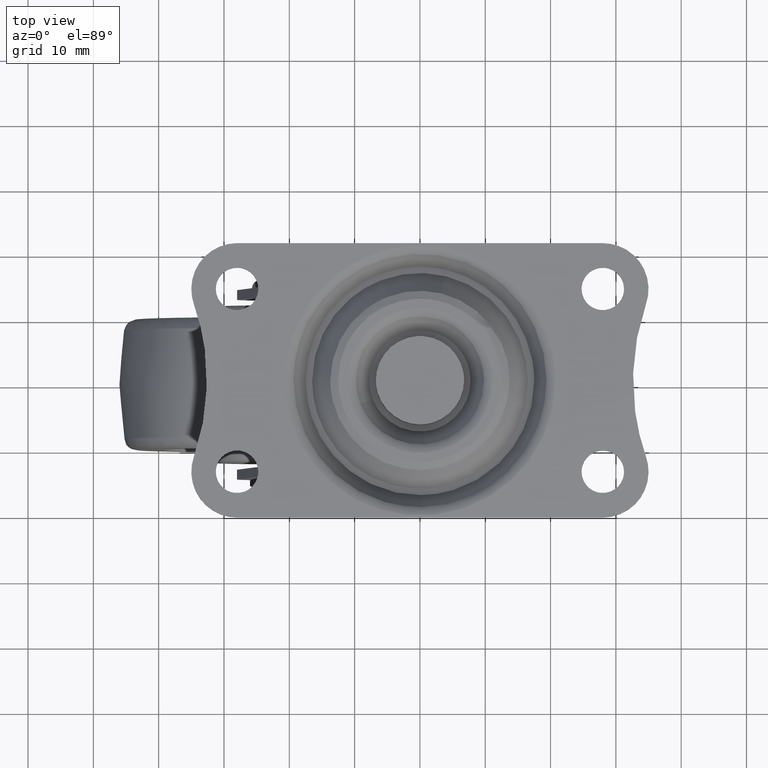
[diagram: clean part render]
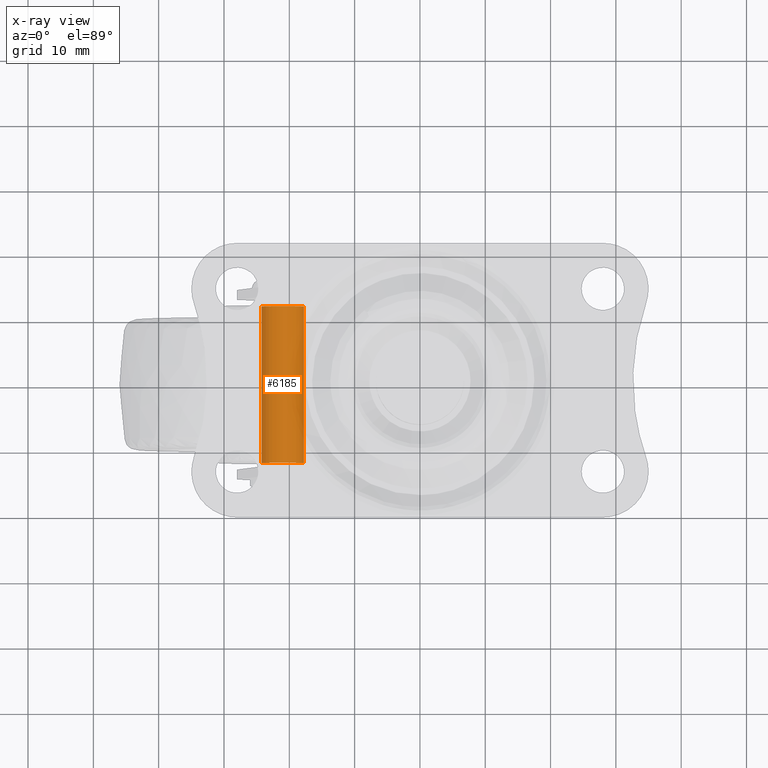
[diagram: x-ray — body ghosted, one internal face saturated and labeled with its STEP entity id]
A machine part, top view, then the same camera in x-ray: the body is ghosted and one INTERNAL B-rep face — a face not visible from any outside direction — is saturated and labeled: STEP entity #6185.
In plain terms, the highlighted face is a freeform B-spline surface patch.
Its self-contained STEP definition (entity closure, byte-faithful):
#6022=CARTESIAN_POINT('',(-17.772719039331999,12.0,-38.116388737248442));
#6023=VERTEX_POINT('',#6022);
#6041=CARTESIAN_POINT('',(-24.243938094861530,12.0,-38.698407753644197));
#6042=VERTEX_POINT('',#6041);
#6056=CARTESIAN_POINT('',(-24.243938094861530,-12.0,-38.698407753644197));
#6057=VERTEX_POINT('',#6056);
#6058=CARTESIAN_POINT('',(-24.243938094861530,-12.0,-38.698407753644197));
#6059=CARTESIAN_POINT('',(-24.243938094861530,12.0,-38.698407753644197));
#6060=QUASI_UNIFORM_CURVE('',1,(#6058,#6059),.UNSPECIFIED.,.F.,.U.);
#6061=EDGE_CURVE('',#6057,#6042,#6060,.T.);
#6078=CARTESIAN_POINT('',(-17.772719039331999,-12.0,-38.116388737248450));
#6079=VERTEX_POINT('',#6078);
#6095=CARTESIAN_POINT('',(-17.772719039331999,-12.0,-38.116388737248450));
#6096=CARTESIAN_POINT('',(-17.772719039331999,12.0,-38.116388737248442));
#6097=QUASI_UNIFORM_CURVE('',1,(#6095,#6096),.UNSPECIFIED.,.F.,.U.);
#6098=EDGE_CURVE('',#6079,#6023,#6097,.T.);
#6103=CARTESIAN_POINT('',(-24.243938094871069,-12.600000000000000,-38.698407753488283));
#6104=CARTESIAN_POINT('',(-24.442345848359359,-12.600000000000005,-35.454469658617207));
#6105=CARTESIAN_POINT('',(-21.198407753488290,-12.600000000000000,-35.256061905128931));
#6106=CARTESIAN_POINT('',(-18.134983654771620,-12.600000000000005,-35.068694860619289));
#6107=CARTESIAN_POINT('',(-17.772719039318094,-12.600000000000003,-38.116388737365540));
#6108=CARTESIAN_POINT('',(-24.243938094871069,12.615000000000000,-38.698407753488283));
#6109=CARTESIAN_POINT('',(-24.442345848359359,12.615000000000002,-35.454469658617207));
#6110=CARTESIAN_POINT('',(-21.198407753488290,12.615000000000000,-35.256061905128931));
#6111=CARTESIAN_POINT('',(-18.134983654771620,12.615000000000000,-35.068694860619289));
#6112=CARTESIAN_POINT('',(-17.772719039318094,12.615000000000007,-38.116388737365540));
#6120=(BOUNDED_SURFACE()B_SPLINE_SURFACE(2,1,((#6103,#6108),(#6104,#6109),(#6105,#6110),(#6106,#6111),(#6107,#6112)),.UNSPECIFIED.,.F.,.F.,.U.)B_SPLINE_SURFACE_WITH_KNOTS((3,2,3),(2,2),(0.0,5.384776310850232,10.554161569266460),(0.0,25.215000000000011),.UNSPECIFIED.)GEOMETRIC_REPRESENTATION_ITEM()RATIONAL_B_SPLINE_SURFACE(((1.0,1.0),(0.707106781186548,0.707106781186548),(1.0,1.0),(0.718822509939086,0.718822509939086),(0.977505800795127,0.977505800795127)))REPRESENTATION_ITEM('')SURFACE());
#6121=CARTESIAN_POINT('',(-21.0,12.0,-35.250000000000000));
#6122=VERTEX_POINT('',#6121);
#6123=CARTESIAN_POINT('',(-21.0,12.0,-35.250000000000000));
#6124=CARTESIAN_POINT('',(-18.113432790868988,12.0,-35.249999999999993));
#6125=CARTESIAN_POINT('',(-17.772719039332003,12.000000000000005,-38.116388737248442));
#6133=(BOUNDED_CURVE()B_SPLINE_CURVE(2,(#6123,#6124,#6125),.UNSPECIFIED.,.F.,.U.)B_SPLINE_CURVE_WITH_KNOTS((3,3),(0.0,0.229562473503381),.UNSPECIFIED.)CURVE()GEOMETRIC_REPRESENTATION_ITEM()RATIONAL_B_SPLINE_CURVE((1.0,0.731050832867268,0.956026754163849))REPRESENTATION_ITEM(''));
#6134=EDGE_CURVE('',#6122,#6023,#6133,.T.);
#6135=ORIENTED_EDGE('',*,*,#6134,.T.);
#6136=ORIENTED_EDGE('',*,*,#6098,.F.);
#6137=CARTESIAN_POINT('',(-21.0,-12.0,-35.250000000000000));
#6138=VERTEX_POINT('',#6137);
#6139=CARTESIAN_POINT('',(-21.0,-12.0,-35.250000000000000));
#6140=CARTESIAN_POINT('',(-18.113432790868991,-12.0,-35.250000000000007));
#6141=CARTESIAN_POINT('',(-17.772719039332003,-12.000000000000002,-38.116388737248442));
#6149=(BOUNDED_CURVE()B_SPLINE_CURVE(2,(#6139,#6140,#6141),.UNSPECIFIED.,.F.,.U.)B_SPLINE_CURVE_WITH_KNOTS((3,3),(0.0,0.229562473503381),.UNSPECIFIED.)CURVE()GEOMETRIC_REPRESENTATION_ITEM()RATIONAL_B_SPLINE_CURVE((1.0,0.731050832867267,0.956026754163850))REPRESENTATION_ITEM(''));
#6150=EDGE_CURVE('',#6138,#6079,#6149,.T.);
#6151=ORIENTED_EDGE('',*,*,#6150,.F.);
#6152=CARTESIAN_POINT('',(-24.243938094861527,-12.000000000000007,-38.698407753644219));
#6153=CARTESIAN_POINT('',(-24.249999999999996,-11.999999999999995,-38.599296480876788));
#6154=CARTESIAN_POINT('',(-24.250000000000000,-12.0,-38.500000000000000));
#6155=CARTESIAN_POINT('',(-24.250000000000007,-12.0,-35.250000000000000));
#6156=CARTESIAN_POINT('',(-21.0,-12.0,-35.250000000000000));
#6164=(BOUNDED_CURVE()B_SPLINE_CURVE(2,(#6152,#6153,#6154,#6155,#6156),.UNSPECIFIED.,.F.,.U.)B_SPLINE_CURVE_WITH_KNOTS((3,2,3),(0.739332962225381,0.750000000000000,1.0),.UNSPECIFIED.)CURVE()GEOMETRIC_REPRESENTATION_ITEM()RATIONAL_B_SPLINE_CURVE((0.976072041637652,0.987502787883949,1.0,0.707106781186547,1.0))REPRESENTATION_ITEM(''));
#6165=EDGE_CURVE('',#6057,#6138,#6164,.T.);
#6166=ORIENTED_EDGE('',*,*,#6165,.F.);
#6167=ORIENTED_EDGE('',*,*,#6061,.T.);
#6168=CARTESIAN_POINT('',(-24.243938094861534,12.000000000000004,-38.698407753644204));
#6169=CARTESIAN_POINT('',(-24.249999999999993,12.0,-38.599296480876774));
#6170=CARTESIAN_POINT('',(-24.250000000000000,12.0,-38.500000000000000));
#6171=CARTESIAN_POINT('',(-24.250000000000007,12.0,-35.250000000000000));
#6172=CARTESIAN_POINT('',(-21.0,12.0,-35.250000000000000));
#6180=(BOUNDED_CURVE()B_SPLINE_CURVE(2,(#6168,#6169,#6170,#6171,#6172),.UNSPECIFIED.,.F.,.U.)B_SPLINE_CURVE_WITH_KNOTS((3,2,3),(0.739332962225381,0.750000000000000,1.0),.UNSPECIFIED.)CURVE()GEOMETRIC_REPRESENTATION_ITEM()RATIONAL_B_SPLINE_CURVE((0.976072041637651,0.987502787883948,1.0,0.707106781186547,1.0))REPRESENTATION_ITEM(''));
#6181=EDGE_CURVE('',#6042,#6122,#6180,.T.);
#6182=ORIENTED_EDGE('',*,*,#6181,.T.);
#6183=EDGE_LOOP('',(#6135,#6136,#6151,#6166,#6167,#6182));
#6184=FACE_OUTER_BOUND('',#6183,.T.);
#6185=ADVANCED_FACE('',(#6184),#6120,.F.);